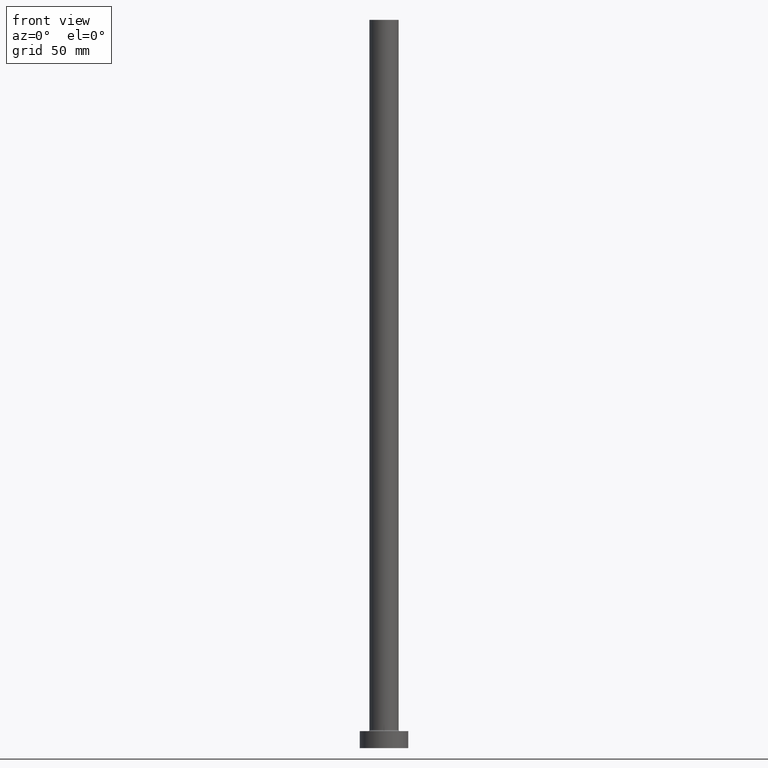
[diagram: clean part render]
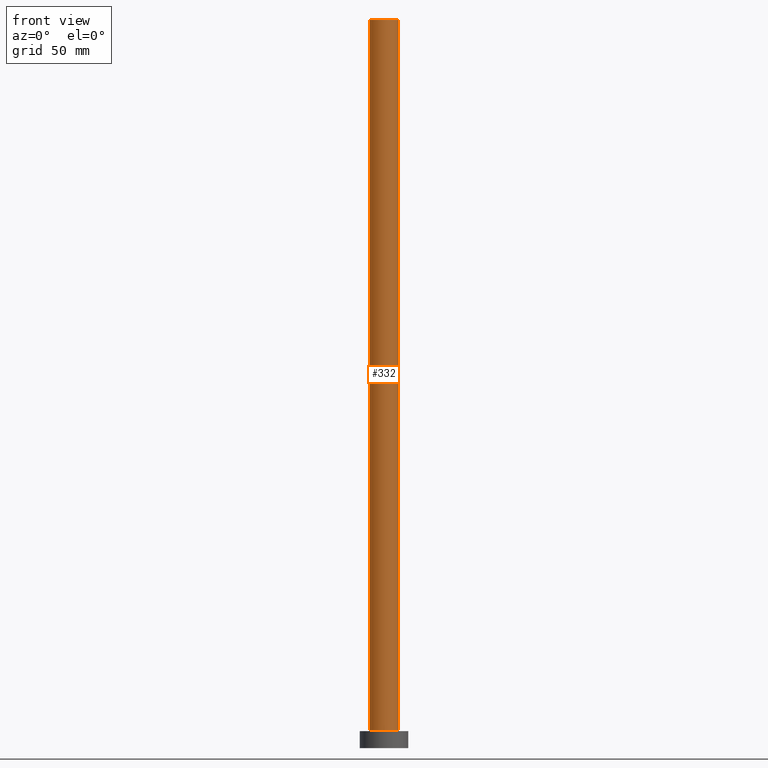
[diagram: same view with one face highlighted and labeled with its STEP entity id]
A machine part, front view. The second image highlights one B-rep face of the part: STEP entity #332.
In plain terms, the highlighted cylindrical surface (edge-blend (fillet) strip) has radius 6 mm, axis along (-0, -0, -1).
Its self-contained STEP definition (entity closure, byte-faithful):
#4 = CARTESIAN_POINT ( 'NONE',  ( 6.000000000000000888, 7.347880794884120722E-16, 300.0000000000000000 ) ) ;
#23 = DIRECTION ( 'NONE',  ( -0.000000000000000000, -0.000000000000000000, -1.000000000000000000 ) ) ;
#29 = DIRECTION ( 'NONE',  ( 0.000000000000000000, 0.000000000000000000, 1.000000000000000000 ) ) ;
#49 = DIRECTION ( 'NONE',  ( 0.000000000000000000, 0.000000000000000000, 1.000000000000000000 ) ) ;
#92 = CIRCLE ( 'NONE', #201, 6.000000000000000888 ) ;
#94 = CARTESIAN_POINT ( 'NONE',  ( -6.000000000000000888, 0.000000000000000000, 300.0000000000000000 ) ) ;
#96 = AXIS2_PLACEMENT_3D ( 'NONE', #420, #164, #213 ) ;
#102 = CARTESIAN_POINT ( 'NONE',  ( 6.000000000000000888, 7.347880794884120722E-16, 7.500000000000007105 ) ) ;
#125 = FACE_OUTER_BOUND ( 'NONE', #384, .T. ) ;
#141 = AXIS2_PLACEMENT_3D ( 'NONE', #235, #49, #200 ) ;
#164 = DIRECTION ( 'NONE',  ( -0.000000000000000000, -0.000000000000000000, -1.000000000000000000 ) ) ;
#168 = VECTOR ( 'NONE', #253, 1000.000000000000000 ) ;
#170 = CARTESIAN_POINT ( 'NONE',  ( -6.000000000000000888, 0.000000000000000000, 7.500000000000007105 ) ) ;
#180 = VERTEX_POINT ( 'NONE', #269 ) ;
#200 = DIRECTION ( 'NONE',  ( 1.000000000000000000, 0.000000000000000000, 0.000000000000000000 ) ) ;
#201 = AXIS2_PLACEMENT_3D ( 'NONE', #352, #29, #240 ) ;
#213 = DIRECTION ( 'NONE',  ( -1.000000000000000000, 0.000000000000000000, 0.000000000000000000 ) ) ;
#235 = CARTESIAN_POINT ( 'NONE',  ( 0.000000000000000000, 0.000000000000000000, 7.500000000000007105 ) ) ;
#240 = DIRECTION ( 'NONE',  ( 1.000000000000000000, 0.000000000000000000, 0.000000000000000000 ) ) ;
#243 = CYLINDRICAL_SURFACE ( 'NONE', #96, 6.000000000000000888 ) ;
#253 = DIRECTION ( 'NONE',  ( -0.000000000000000000, -0.000000000000000000, -1.000000000000000000 ) ) ;
#261 = EDGE_CURVE ( 'NONE', #389, #440, #421, .T. ) ;
#263 = ORIENTED_EDGE ( 'NONE', *, *, #450, .F. ) ;
#269 = CARTESIAN_POINT ( 'NONE',  ( -6.000000000000000888, 0.000000000000000000, 300.0000000000000000 ) ) ;
#285 = LINE ( 'NONE', #94, #334 ) ;
#327 = LINE ( 'NONE', #4, #168 ) ;
#332 = ADVANCED_FACE ( 'NONE', ( #125 ), #243, .T. ) ;
#334 = VECTOR ( 'NONE', #23, 1000.000000000000000 ) ;
#338 = ORIENTED_EDGE ( 'NONE', *, *, #354, .T. ) ;
#339 = EDGE_CURVE ( 'NONE', #180, #409, #92, .T. ) ;
#352 = CARTESIAN_POINT ( 'NONE',  ( 0.000000000000000000, 0.000000000000000000, 300.0000000000000000 ) ) ;
#354 = EDGE_CURVE ( 'NONE', #180, #389, #285, .T. ) ;
#366 = ORIENTED_EDGE ( 'NONE', *, *, #339, .F. ) ;
#384 = EDGE_LOOP ( 'NONE', ( #263, #366, #338, #460 ) ) ;
#389 = VERTEX_POINT ( 'NONE', #170 ) ;
#409 = VERTEX_POINT ( 'NONE', #428 ) ;
#420 = CARTESIAN_POINT ( 'NONE',  ( 0.000000000000000000, 0.000000000000000000, 300.0000000000000000 ) ) ;
#421 = CIRCLE ( 'NONE', #141, 6.000000000000000888 ) ;
#428 = CARTESIAN_POINT ( 'NONE',  ( 6.000000000000000888, 7.347880794884120722E-16, 300.0000000000000000 ) ) ;
#440 = VERTEX_POINT ( 'NONE', #102 ) ;
#450 = EDGE_CURVE ( 'NONE', #409, #440, #327, .T. ) ;
#460 = ORIENTED_EDGE ( 'NONE', *, *, #261, .T. ) ;